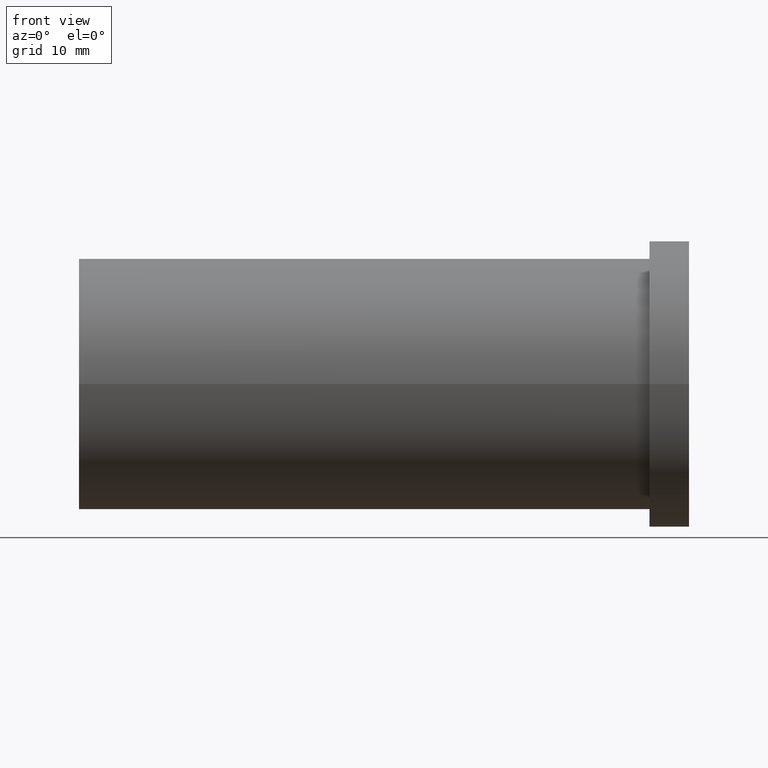
[diagram: clean part render]
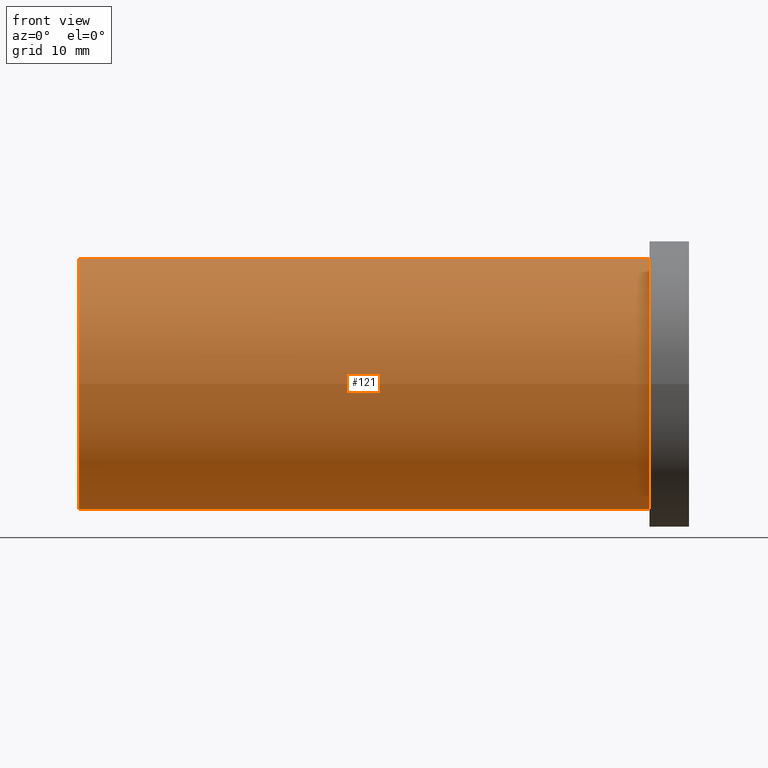
[diagram: same view with one face highlighted and labeled with its STEP entity id]
A machine part, front view. The second image highlights one B-rep face of the part: STEP entity #121.
In plain terms, the highlighted cylindrical surface (bore or boss wall) has radius 15.875 mm, axis along (1, 0, 0).
Its self-contained STEP definition (entity closure, byte-faithful):
#28=FACE_OUTER_BOUND('',#38,.T.);
#38=EDGE_LOOP('',(#105,#106,#107,#108));
#45=LINE('',#234,#50);
#50=VECTOR('',#201,15.8750000000001);
#58=CIRCLE('',#159,15.875);
#59=CIRCLE('',#161,15.8750000000001);
#67=VERTEX_POINT('',#229);
#68=VERTEX_POINT('',#232);
#80=EDGE_CURVE('',#67,#67,#58,.T.);
#81=EDGE_CURVE('',#68,#68,#59,.T.);
#82=EDGE_CURVE('',#68,#67,#45,.T.);
#105=ORIENTED_EDGE('',*,*,#81,.F.);
#106=ORIENTED_EDGE('',*,*,#82,.T.);
#107=ORIENTED_EDGE('',*,*,#80,.T.);
#108=ORIENTED_EDGE('',*,*,#82,.F.);
#114=CYLINDRICAL_SURFACE('',#160,15.8750000000001);
#121=ADVANCED_FACE('',(#28),#114,.T.);
#159=AXIS2_PLACEMENT_3D('',#230,#195,#196);
#160=AXIS2_PLACEMENT_3D('',#231,#197,#198);
#161=AXIS2_PLACEMENT_3D('',#233,#199,#200);
#195=DIRECTION('center_axis',(1.,0.,0.));
#196=DIRECTION('ref_axis',(0.,0.,-1.));
#197=DIRECTION('center_axis',(1.,0.,0.));
#198=DIRECTION('ref_axis',(0.,1.,0.));
#199=DIRECTION('center_axis',(1.,0.,0.));
#200=DIRECTION('ref_axis',(0.,0.,-1.));
#201=DIRECTION('',(-1.,0.,0.));
#229=CARTESIAN_POINT('',(-77.,-15.8750000000001,-1.94412679364643E-15));
#230=CARTESIAN_POINT('Origin',(-77.,0.,0.));
#231=CARTESIAN_POINT('Origin',(-41.,0.,0.));
#232=CARTESIAN_POINT('',(-5.,-15.8750000000001,-1.94412679364643E-15));
#233=CARTESIAN_POINT('Origin',(-5.,0.,0.));
#234=CARTESIAN_POINT('',(-41.,-15.8750000000001,-1.94412679364643E-15));